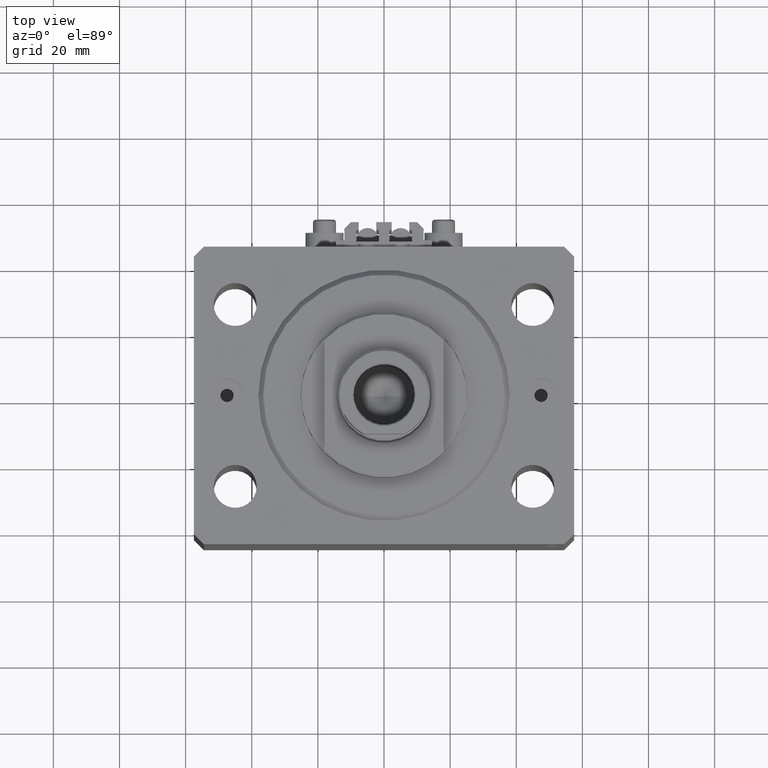
[diagram: clean part render]
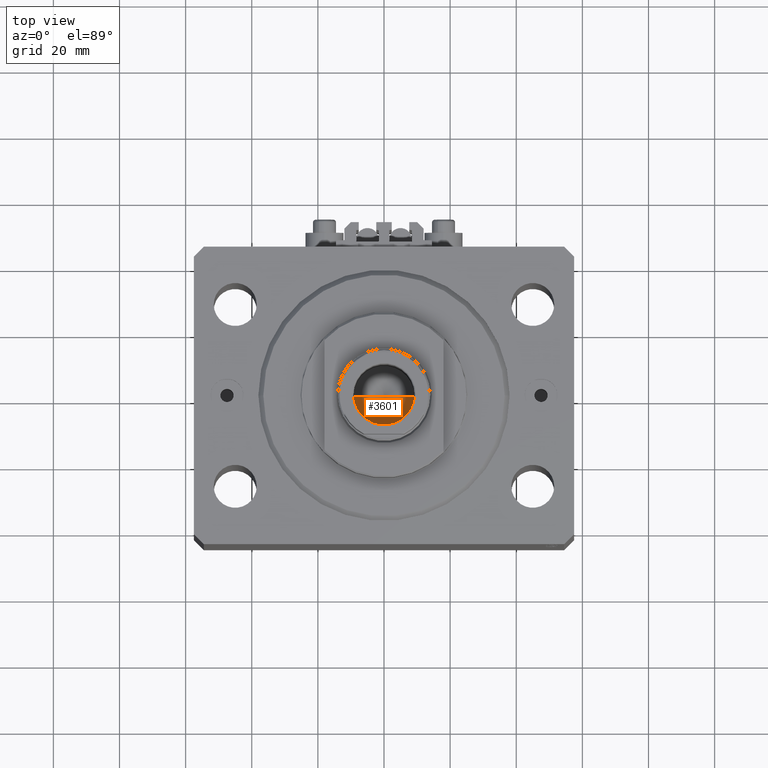
[diagram: same view with one face highlighted and labeled with its STEP entity id]
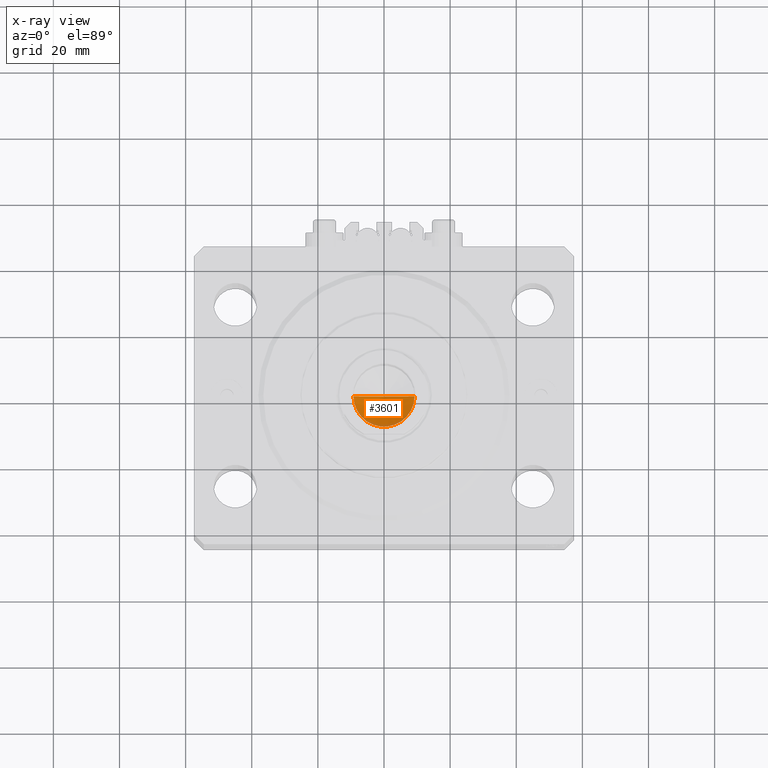
[diagram: x-ray of the same camera — body ghosted, the highlighted face saturated]
A machine part, top view. The second image highlights one B-rep face of the part: STEP entity #3601.
The next image is the same camera in x-ray: the body ghosted, the highlighted face saturated — about 8% of this face is hidden behind the body in this view.
In plain terms, the highlighted conical surface has half-angle 59 deg.
Its self-contained STEP definition (entity closure, byte-faithful):
#1071 = LINE ( 'NONE', #16609, #30379 ) ;
#3601 = ADVANCED_FACE ( 'NONE', ( #4689 ), #5491, .F. ) ;
#3679 = DIRECTION ( 'NONE',  ( -0.000000000000000000, -0.000000000000000000, 1.000000000000000000 ) ) ;
#4689 = FACE_OUTER_BOUND ( 'NONE', #7968, .T. ) ;
#5491 = CONICAL_SURFACE ( 'NONE', #45840, 9.249999999999994671, 1.029744258676653423 ) ;
#6563 = ORIENTED_EDGE ( 'NONE', *, *, #42041, .T. ) ;
#7380 = CARTESIAN_POINT ( 'NONE',  ( 0.000000000000000000, 0.000000000000000000, 72.09999999999999432 ) ) ;
#7968 = EDGE_LOOP ( 'NONE', ( #9475, #22888, #6563 ) ) ;
#8090 = DIRECTION ( 'NONE',  ( 1.000000000000000000, 0.000000000000000000, 0.000000000000000000 ) ) ;
#9475 = ORIENTED_EDGE ( 'NONE', *, *, #20080, .F. ) ;
#14523 = CARTESIAN_POINT ( 'NONE',  ( -1.046994375366439223E-14, 0.000000000000000000, 66.54203927399505858 ) ) ;
#16609 = CARTESIAN_POINT ( 'NONE',  ( 9.249999999999994671, 0.000000000000000000, 72.09999999999999432 ) ) ;
#18499 = DIRECTION ( 'NONE',  ( 1.000000000000000000, 0.000000000000000000, 0.000000000000000000 ) ) ;
#19322 = DIRECTION ( 'NONE',  ( -0.8571673007021117785, 1.049727191138617956E-16, 0.5150380749100550437 ) ) ;
#20080 = EDGE_CURVE ( 'NONE', #29641, #37819, #1071, .T. ) ;
#21741 = VERTEX_POINT ( 'NONE', #28098 ) ;
#21778 = AXIS2_PLACEMENT_3D ( 'NONE', #36963, #3679, #18499 ) ;
#22888 = ORIENTED_EDGE ( 'NONE', *, *, #44372, .T. ) ;
#23327 = CIRCLE ( 'NONE', #21778, 9.249999999999994671 ) ;
#28098 = CARTESIAN_POINT ( 'NONE',  ( -9.249999999999994671, 1.132798289211300909E-15, 72.09999999999999432 ) ) ;
#29641 = VERTEX_POINT ( 'NONE', #14523 ) ;
#30379 = VECTOR ( 'NONE', #42590, 1000.000000000000000 ) ;
#34386 = LINE ( 'NONE', #46026, #38946 ) ;
#36963 = CARTESIAN_POINT ( 'NONE',  ( 0.000000000000000000, 0.000000000000000000, 72.09999999999999432 ) ) ;
#37491 = DIRECTION ( 'NONE',  ( -0.000000000000000000, -0.000000000000000000, 1.000000000000000000 ) ) ;
#37819 = VERTEX_POINT ( 'NONE', #40697 ) ;
#38946 = VECTOR ( 'NONE', #19322, 1000.000000000000000 ) ;
#40697 = CARTESIAN_POINT ( 'NONE',  ( 9.249999999999994671, 0.000000000000000000, 72.09999999999999432 ) ) ;
#42041 = EDGE_CURVE ( 'NONE', #21741, #37819, #23327, .T. ) ;
#42590 = DIRECTION ( 'NONE',  ( 0.8571673007021117785, 0.000000000000000000, 0.5150380749100550437 ) ) ;
#44372 = EDGE_CURVE ( 'NONE', #29641, #21741, #34386, .T. ) ;
#45840 = AXIS2_PLACEMENT_3D ( 'NONE', #7380, #37491, #8090 ) ;
#46026 = CARTESIAN_POINT ( 'NONE',  ( -9.249999999999994671, 1.132798289211300909E-15, 72.09999999999999432 ) ) ;